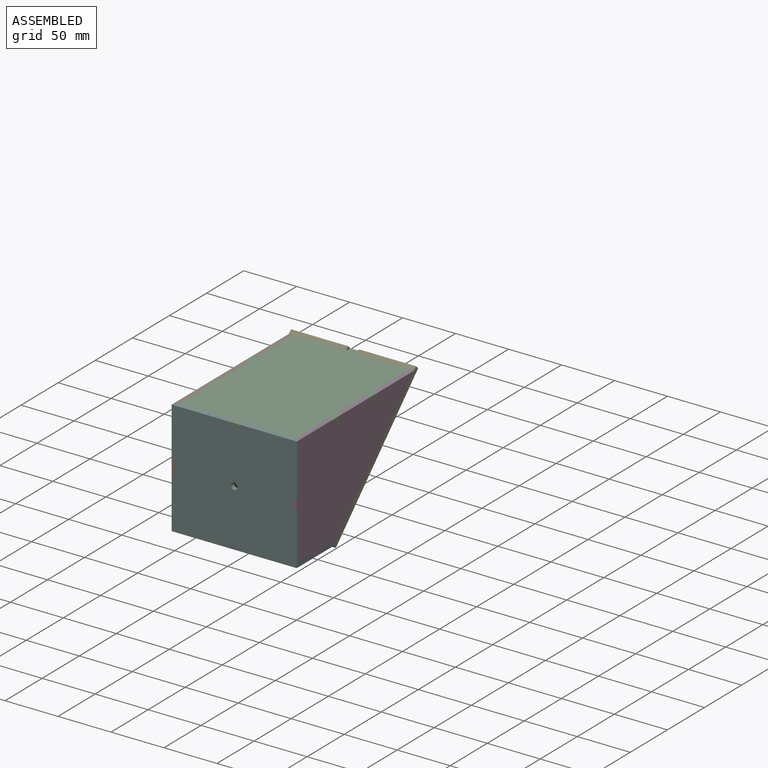
[diagram: assembled view]
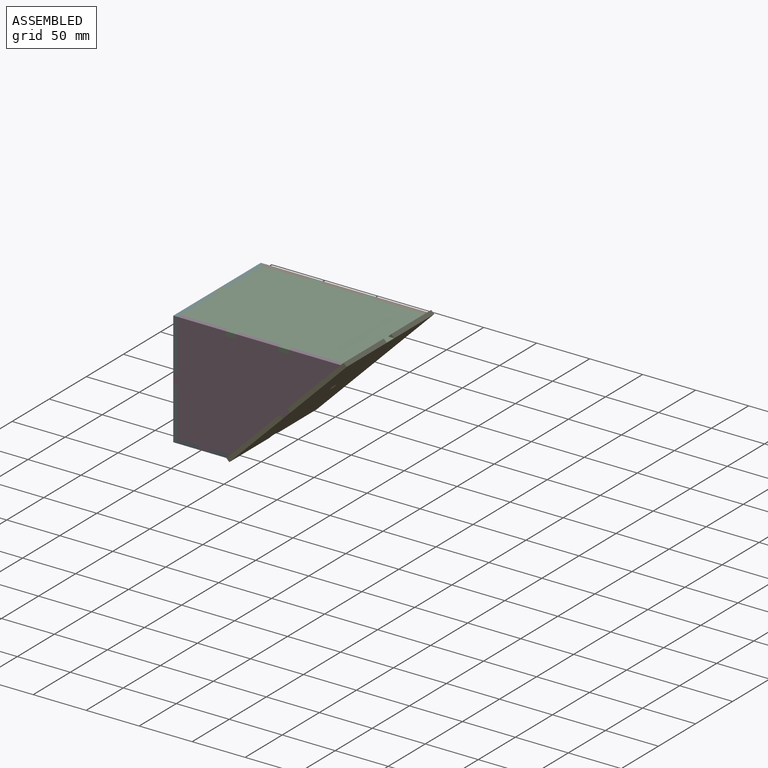
[diagram: assembled view, second angle]
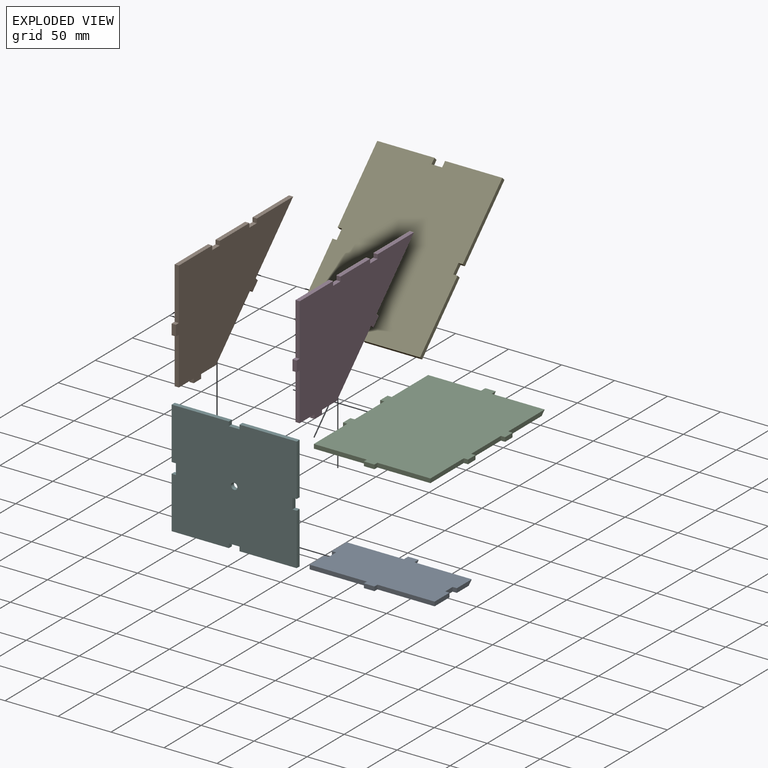
[diagram: exploded view]
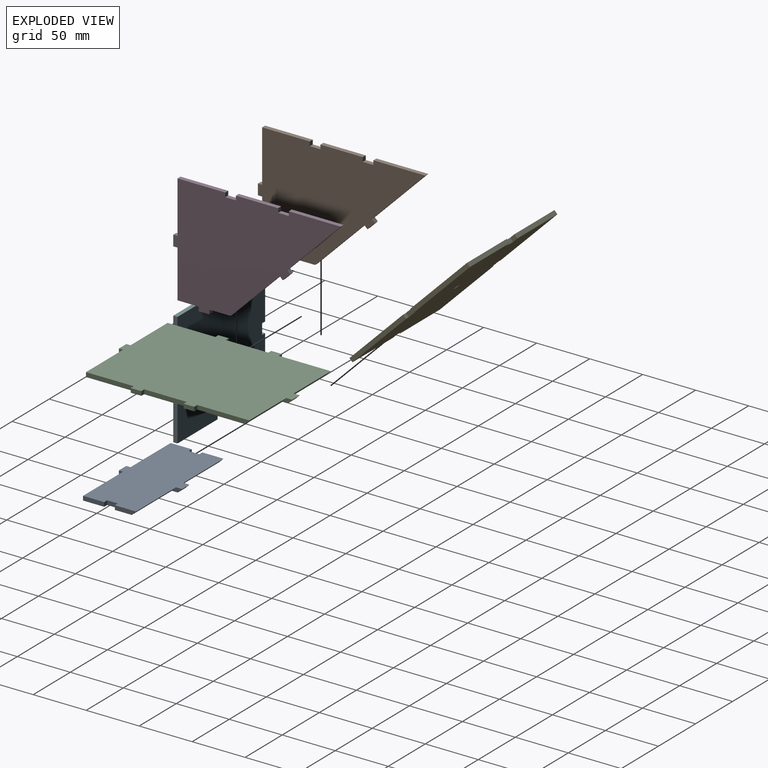
[diagram: exploded view, second angle]
ASSEMBLY  parts=6 mates=5
PART A: 22 faces, bbox 118x59.7x4 mm
  f0: plane 4x4mm, normal (-1,0,0), area 16mm2, adj f1,f16,f17,f18
  f1: plane 10x4mm, normal (0,-1,0), area 40mm2, adj f0,f2,f17,f18
  f2: plane 4x4mm, normal (1,0,0), area 16mm2, adj f1,f3,f17,f18
  f3: plane 54x4mm, normal (0,-1,0), area 216mm2, adj f2,f4,f17,f18
  f4: plane 20x4mm, normal (1,0,0), area 80mm2, adj f3,f5,f17,f18
  f5: plane 4x4mm, normal (0,1,0), area 16mm2, adj f4,f6,f17,f18
  f6: plane 10x4mm, normal (1,0,0), area 40mm2, adj f5,f7,f17,f18
  f7: plane 4x4mm, normal (0,-1,0), area 16mm2, adj f6,f8,f17,f18
  f8: plane 20x4mm, normal (1,0,0), area 72mm2, adj f7,f17,f18,f19
  f9: plane 9.66x4mm, normal (1,0,0), area 22.6mm2, adj f17,f18,f19,f20
  f10: plane 9.66x4mm, normal (-1,0,0), area 22.6mm2, adj f17,f18,f20,f21
  f11: plane 20x4mm, normal (-1,0,0), area 72mm2, adj f12,f17,f18,f21
  f12: plane 4x4mm, normal (0,-1,0), area 16mm2, adj f11,f13,f17,f18
  f13: plane 10x4mm, normal (-1,0,0), area 40mm2, adj f12,f14,f17,f18
  f14: plane 4x4mm, normal (0,1,0), area 16mm2, adj f13,f15,f17,f18
  f15: plane 20x4mm, normal (-1,0,0), area 80mm2, adj f14,f16,f17,f18
  f16: plane 54x4mm, normal (0,-1,0), area 216mm2, adj f0,f15,f17,f18
  f17: plane 118x55.66mm, normal (0,0,1), area 5444.6mm2, adj f0,f1,f2,f3,f4,f5,f6,f7
  f18: plane 118x59.66mm, normal (0,0,-1), area 5916.6mm2, adj f0,f1,f2,f3,f4,f5,f6,f7
  f19: plane 54x4mm, normal (0,0.71,0.71), area 305.5mm2, adj f8,f9,f17,f18
  f20: plane 10x4mm, normal (0,0.71,0.71), area 56.6mm2, adj f9,f10,f17,f18
  f21: plane 54x4mm, normal (0,0.71,0.71), area 305.5mm2, adj f10,f11,f17,f18
PART B: 26 faces, bbox 4x158x108 mm
  f0: plane 4x2.83mm, normal (0,0.71,0.71), area 16mm2, adj f1,f23,f24,f25
  f1: plane 50.46x50.46mm, normal (0,0.71,-0.71), area 285.5mm2, adj f0,f2,f24,f25
  f2: plane 49x4mm, normal (0,0,1), area 196mm2, adj f1,f3,f24,f25
  f3: plane 4x4mm, normal (0,-1,0), area 16mm2, adj f2,f4,f24,f25
  f4: plane 10x4mm, normal (0,0,1), area 40mm2, adj f3,f5,f24,f25
  f5: plane 4x4mm, normal (0,1,0), area 16mm2, adj f4,f6,f24,f25
  f6: plane 40x4mm, normal (0,0,1), area 160mm2, adj f5,f7,f24,f25
  f7: plane 4x4mm, normal (0,-1,0), area 16mm2, adj f6,f8,f24,f25
  f8: plane 10x4mm, normal (0,0,1), area 40mm2, adj f7,f9,f24,f25
  f9: plane 4x4mm, normal (0,1,0), area 16mm2, adj f8,f10,f24,f25
  f10: plane 45x4mm, normal (0,0,1), area 180mm2, adj f9,f11,f24,f25
  f11: plane 49x4mm, normal (0,-1,0), area 196mm2, adj f10,f12,f24,f25
  f12: plane 4x4mm, normal (0,0,1), area 16mm2, adj f11,f13,f24,f25
  f13: plane 10x4mm, normal (0,-1,0), area 40mm2, adj f12,f14,f24,f25
  f14: plane 4x4mm, normal (0,0,-1), area 16mm2, adj f13,f15,f24,f25
  f15: plane 45x4mm, normal (0,-1,0), area 180mm2, adj f14,f16,f24,f25
  f16: plane 20x4mm, normal (0,0,-1), area 80mm2, adj f15,f17,f24,f25
  f17: plane 4x4mm, normal (0,-1,0), area 16mm2, adj f16,f18,f24,f25
  f18: plane 10x4mm, normal (0,0,-1), area 40mm2, adj f17,f19,f24,f25
  f19: plane 4x4mm, normal (0,1,0), area 16mm2, adj f18,f20,f24,f25
  f20: plane 20x4mm, normal (0,0,-1), area 80mm2, adj f19,f21,f24,f25
  f21: plane 46.46x46.46mm, normal (0,0.71,-0.71), area 262.8mm2, adj f20,f22,f24,f25
  f22: plane 4x2.83mm, normal (0,-0.71,-0.71), area 16mm2, adj f21,f23,f24,f25
  f23: plane 7.07x7.07mm, normal (0,0.71,-0.71), area 40mm2, adj f0,f22,f24,f25
  f24: plane 158x108mm, normal (1,0,0), area 10648mm2, adj f0,f1,f2,f3,f4,f5,f6,f7
  f25: plane 158x108mm, normal (-1,0,0), area 10648mm2, adj f0,f1,f2,f3,f4,f5,f6,f7
PART C: 30 faces, bbox 163.7x118x4 mm
  f0: plane 4x4mm, normal (0,1,0), area 16mm2, adj f1,f24,f25,f26
  f1: plane 10x4mm, normal (-1,0,0), area 40mm2, adj f0,f2,f25,f26
  f2: plane 4x4mm, normal (0,-1,0), area 16mm2, adj f1,f3,f25,f26
  f3: plane 50x4mm, normal (-1,0,0), area 200mm2, adj f2,f4,f25,f26
  f4: plane 45x4mm, normal (0,-1,0), area 180mm2, adj f3,f5,f25,f26
  f5: plane 4x4mm, normal (-1,0,0), area 16mm2, adj f4,f6,f25,f26
  f6: plane 10x4mm, normal (0,-1,0), area 40mm2, adj f5,f7,f25,f26
  f7: plane 4x4mm, normal (1,0,0), area 16mm2, adj f6,f8,f25,f26
  f8: plane 40x4mm, normal (0,-1,0), area 160mm2, adj f7,f9,f25,f26
  f9: plane 4x4mm, normal (-1,0,0), area 16mm2, adj f8,f10,f25,f26
  f10: plane 10x4mm, normal (0,-1,0), area 40mm2, adj f9,f11,f25,f26
  f11: plane 4x4mm, normal (1,0,0), area 16mm2, adj f10,f12,f25,f26
  f12: plane 49x4mm, normal (0,-1,0), area 188mm2, adj f11,f25,f26,f27
  f13: plane 9.66x4mm, normal (0,-1,0), area 22.6mm2, adj f25,f26,f27,f28
  f14: plane 9.66x4mm, normal (0,1,0), area 22.6mm2, adj f25,f26,f28,f29
  f15: plane 49x4mm, normal (0,1,0), area 188mm2, adj f16,f25,f26,f29
  f16: plane 4x4mm, normal (1,0,0), area 16mm2, adj f15,f17,f25,f26
  f17: plane 10x4mm, normal (0,1,0), area 40mm2, adj f16,f18,f25,f26
  f18: plane 4x4mm, normal (-1,0,0), area 16mm2, adj f17,f19,f25,f26
  f19: plane 40x4mm, normal (0,1,0), area 160mm2, adj f18,f20,f25,f26
  f20: plane 4x4mm, normal (1,0,0), area 16mm2, adj f19,f21,f25,f26
  f21: plane 10x4mm, normal (0,1,0), area 40mm2, adj f20,f22,f25,f26
  f22: plane 4x4mm, normal (-1,0,0), area 16mm2, adj f21,f23,f25,f26
  f23: plane 45x4mm, normal (0,1,0), area 180mm2, adj f22,f24,f25,f26
  f24: plane 50x4mm, normal (-1,0,0), area 200mm2, adj f0,f23,f25,f26
  f25: plane 163.66x118mm, normal (0,0,1), area 17196.6mm2, adj f0,f1,f2,f3,f4,f5,f6,f7
  f26: plane 159.66x118mm, normal (0,0,-1), area 16756.6mm2, adj f0,f1,f2,f3,f4,f5,f6,f7
  f27: plane 50x4mm, normal (0.71,0,-0.71), area 282.8mm2, adj f12,f13,f25,f26
  f28: plane 10x4mm, normal (0.71,0,-0.71), area 56.6mm2, adj f13,f14,f25,f26
  f29: plane 50x4mm, normal (0.71,0,-0.71), area 282.8mm2, adj f14,f15,f25,f26
PART D: same geometry as B
PART E: 23 faces, bbox 118x4x156.7 mm
  f0: plane 4x4mm, normal (0,0,1), area 16mm2, adj f1,f20,f21,f22
  f1: plane 71.37x4mm, normal (-1,0,0), area 285.5mm2, adj f0,f2,f21,f22
  f2: plane 54x4mm, normal (0,0,-1), area 216mm2, adj f1,f3,f21,f22
  f3: plane 5.66x4mm, normal (1,0,0), area 22.6mm2, adj f2,f4,f21,f22
  f4: plane 10x4mm, normal (0,0,-1), area 40mm2, adj f3,f5,f21,f22
  f5: plane 5.66x4mm, normal (-1,0,0), area 22.6mm2, adj f4,f6,f21,f22
  f6: plane 54x4mm, normal (0,0,-1), area 216mm2, adj f5,f7,f21,f22
  f7: plane 71.37x4mm, normal (1,0,0), area 285.5mm2, adj f6,f8,f21,f22
  f8: plane 4x4mm, normal (0,0,1), area 16mm2, adj f7,f9,f21,f22
  f9: plane 10x4mm, normal (1,0,0), area 40mm2, adj f8,f10,f21,f22
  f10: plane 4x4mm, normal (0,0,-1), area 16mm2, adj f9,f11,f21,f22
  f11: plane 75.37x4mm, normal (1,0,0), area 301.5mm2, adj f10,f12,f21,f22
  f12: plane 54x4mm, normal (0,0,1), area 216mm2, adj f11,f13,f21,f22
  f13: plane 5.66x4mm, normal (-1,0,0), area 22.6mm2, adj f12,f14,f21,f22
  f14: plane 10x4mm, normal (0,0,1), area 40mm2, adj f13,f15,f21,f22
  f15: plane 5.66x4mm, normal (1,0,0), area 22.6mm2, adj f14,f16,f21,f22
  f16: plane 54x4mm, normal (0,0,1), area 216mm2, adj f15,f17,f21,f22
  f17: plane 75.37x4mm, normal (-1,0,0), area 301.5mm2, adj f16,f18,f21,f22
  f18: plane 4x4mm, normal (0,0,-1), area 16mm2, adj f17,f20,f21,f22
  f19: cylinder r=3mm len=6mm, axis (0,1,0), area 75.4mm2, adj f21,f22
  f20: plane 10x4mm, normal (-1,0,0), area 40mm2, adj f0,f18,f21,f22
  f21: plane 156.74x118mm, normal (0,-1,0), area 18273.3mm2, adj f0,f1,f2,f3,f4,f5,f6,f7
  f22: plane 156.74x118mm, normal (0,1,0), area 18273.3mm2, adj f0,f1,f2,f3,f4,f5,f6,f7
PART F: 23 faces, bbox 118x4x108 mm
  f0: plane 49x4mm, normal (-1,0,0), area 196mm2, adj f1,f20,f21,f22
  f1: plane 54x4mm, normal (0,0,-1), area 216mm2, adj f0,f2,f21,f22
  f2: plane 4x4mm, normal (1,0,0), area 16mm2, adj f1,f3,f21,f22
  f3: plane 10x4mm, normal (0,0,-1), area 40mm2, adj f2,f4,f21,f22
  f4: plane 4x4mm, normal (-1,0,0), area 16mm2, adj f3,f5,f21,f22
  f5: plane 54x4mm, normal (0,0,-1), area 216mm2, adj f4,f6,f21,f22
  f6: plane 49x4mm, normal (1,0,0), area 196mm2, adj f5,f7,f21,f22
  f7: plane 4x4mm, normal (0,0,1), area 16mm2, adj f6,f8,f21,f22
  f8: plane 10x4mm, normal (1,0,0), area 40mm2, adj f7,f9,f21,f22
  f9: plane 4x4mm, normal (0,0,-1), area 16mm2, adj f8,f10,f21,f22
  f10: plane 49x4mm, normal (1,0,0), area 196mm2, adj f9,f11,f21,f22
  f11: plane 54x4mm, normal (0,0,1), area 216mm2, adj f10,f12,f21,f22
  f12: plane 4x4mm, normal (-1,0,0), area 16mm2, adj f11,f13,f21,f22
  f13: plane 10x4mm, normal (0,0,1), area 40mm2, adj f12,f14,f21,f22
  f14: plane 4x4mm, normal (1,0,0), area 16mm2, adj f13,f15,f21,f22
  f15: plane 54x4mm, normal (0,0,1), area 216mm2, adj f14,f16,f21,f22
  f16: plane 49x4mm, normal (-1,0,0), area 196mm2, adj f15,f17,f21,f22
  f17: plane 4x4mm, normal (0,0,-1), area 16mm2, adj f16,f18,f21,f22
  f18: plane 10x4mm, normal (-1,0,0), area 40mm2, adj f17,f20,f21,f22
  f19: cylinder r=3mm len=6mm, axis (0,1,0), area 75.4mm2, adj f21,f22
  f20: plane 4x4mm, normal (0,0,1), area 16mm2, adj f0,f18,f21,f22
  f21: plane 118x108mm, normal (0,-1,0), area 12555.7mm2, adj f0,f1,f2,f3,f4,f5,f6,f7
  f22: plane 118x108mm, normal (0,1,0), area 12555.7mm2, adj f0,f1,f2,f3,f4,f5,f6,f7
PLACE A rot(axis=(0,1,0),180deg) t=(-29.34,-63.04,-56.12)mm
PLACE B t=(-88.34,61.96,43.88)mm
PLACE C rot(axis=(0,0,1),90deg) t=(-29.34,-13.04,43.88)mm
PLACE D t=(25.66,61.96,43.88)mm
PLACE E rot(axis=(-1,0,0),45deg) t=(-29.34,14.79,-8.95)mm
PLACE F t=(-29.34,-88.04,-6.12)mm
MATE planar C.f0 <-> F.f14  axis (-1,0,0) through (-34.34,-90.04,45.88)mm
MATE planar B.f12 <-> F.f17  axis (0,0,1) through (-86.34,-90.04,-1.12)mm
MATE planar A.f0 <-> F.f4  axis (1,0,0) through (-24.34,-90.04,-58.12)mm
MATE planar E.f10 <-> D.f0  axis (0,-0.71,-0.71) through (27.66,16.91,-4)mm
MATE planar D.f14 <-> F.f7  axis (0,0,-1) through (27.66,-90.04,-11.12)mm
